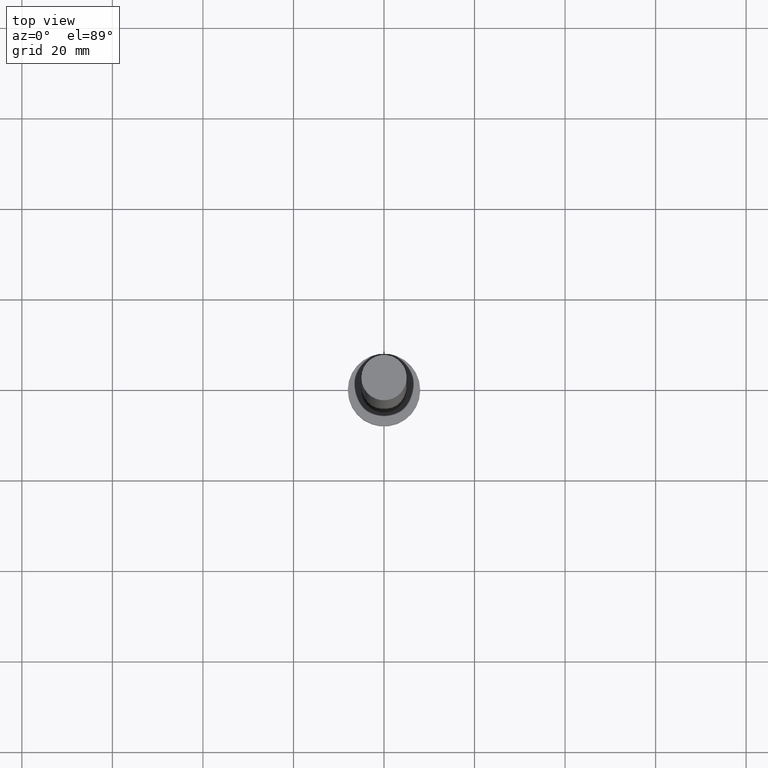
[diagram: clean part render]
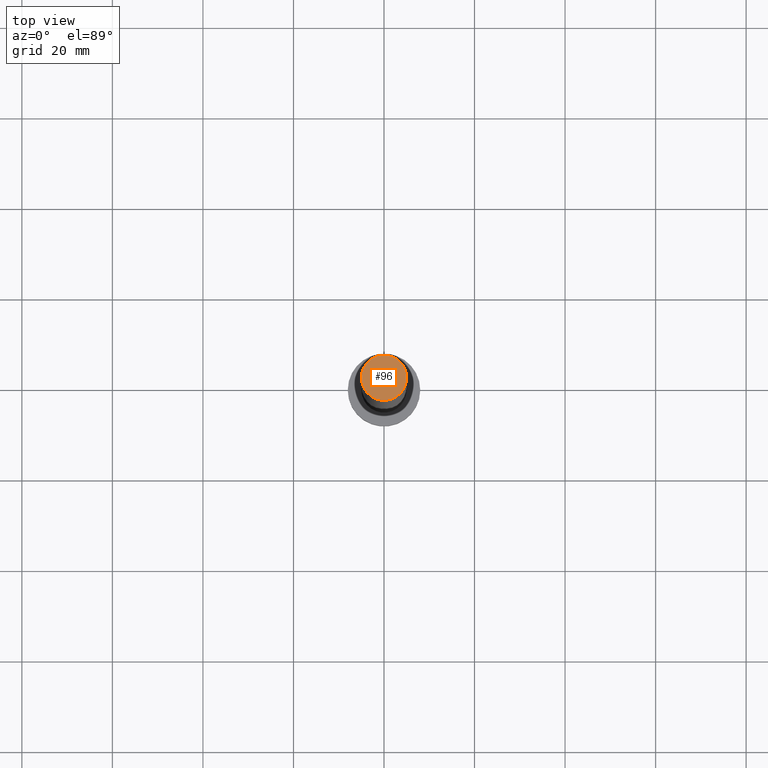
[diagram: same view with one face highlighted and labeled with its STEP entity id]
A machine part, top view. The second image highlights one B-rep face of the part: STEP entity #96.
In plain terms, the highlighted planar face has unit normal (0, 0, 1).
Its self-contained STEP definition (entity closure, byte-faithful):
#5 = EDGE_CURVE ( 'NONE', #34, #15, #30, .T. ) ;
#15 = VERTEX_POINT ( 'NONE', #178 ) ;
#17 = PLANE ( 'NONE',  #241 ) ;
#21 = CARTESIAN_POINT ( 'NONE',  ( 0.000000000000000000, 0.000000000000000000, 160.0000000000000000 ) ) ;
#30 = CIRCLE ( 'NONE', #87, 5.000000000000000000 ) ;
#34 = VERTEX_POINT ( 'NONE', #72 ) ;
#36 = DIRECTION ( 'NONE',  ( 1.000000000000000000, 0.000000000000000000, 0.000000000000000000 ) ) ;
#37 = CARTESIAN_POINT ( 'NONE',  ( 0.000000000000000000, 0.000000000000000000, 160.0000000000000000 ) ) ;
#53 = DIRECTION ( 'NONE',  ( 1.000000000000000000, 0.000000000000000000, -0.000000000000000000 ) ) ;
#54 = FACE_OUTER_BOUND ( 'NONE', #164, .T. ) ;
#72 = CARTESIAN_POINT ( 'NONE',  ( -5.000000000000000000, 0.000000000000000000, 160.0000000000000000 ) ) ;
#79 = EDGE_CURVE ( 'NONE', #15, #34, #216, .T. ) ;
#86 = CARTESIAN_POINT ( 'NONE',  ( 0.000000000000000000, 0.000000000000000000, 160.0000000000000000 ) ) ;
#87 = AXIS2_PLACEMENT_3D ( 'NONE', #37, #254, #204 ) ;
#96 = ADVANCED_FACE ( 'NONE', ( #54 ), #17, .T. ) ;
#109 = AXIS2_PLACEMENT_3D ( 'NONE', #21, #200, #36 ) ;
#157 = ORIENTED_EDGE ( 'NONE', *, *, #79, .T. ) ;
#162 = DIRECTION ( 'NONE',  ( 0.000000000000000000, 0.000000000000000000, 1.000000000000000000 ) ) ;
#164 = EDGE_LOOP ( 'NONE', ( #198, #157 ) ) ;
#178 = CARTESIAN_POINT ( 'NONE',  ( 5.000000000000000000, 6.123233995736766282E-16, 160.0000000000000000 ) ) ;
#198 = ORIENTED_EDGE ( 'NONE', *, *, #5, .T. ) ;
#200 = DIRECTION ( 'NONE',  ( 0.000000000000000000, 0.000000000000000000, 1.000000000000000000 ) ) ;
#204 = DIRECTION ( 'NONE',  ( 1.000000000000000000, 0.000000000000000000, 0.000000000000000000 ) ) ;
#216 = CIRCLE ( 'NONE', #109, 5.000000000000000000 ) ;
#241 = AXIS2_PLACEMENT_3D ( 'NONE', #86, #162, #53 ) ;
#254 = DIRECTION ( 'NONE',  ( 0.000000000000000000, 0.000000000000000000, 1.000000000000000000 ) ) ;